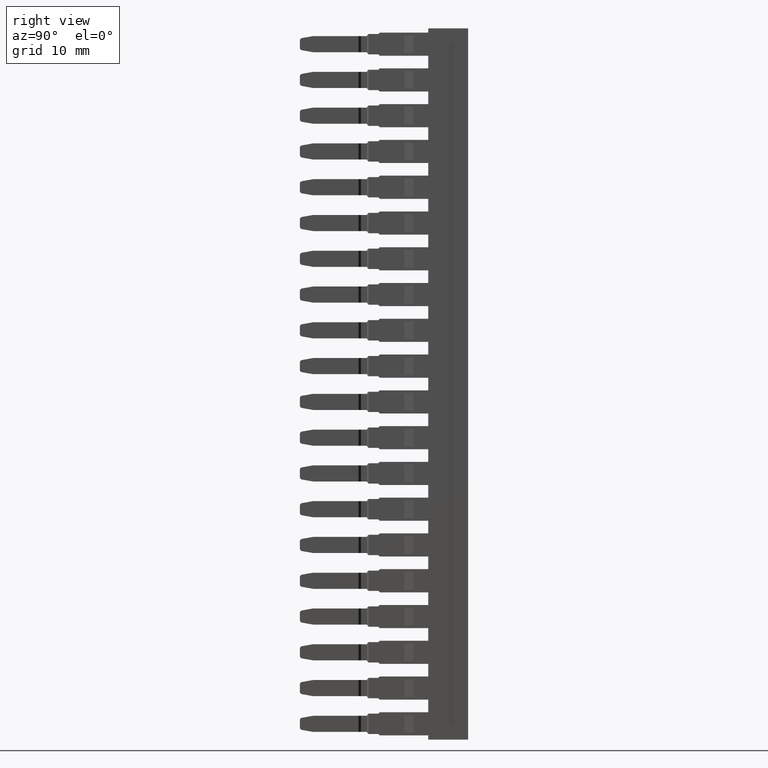
[diagram: clean part render]
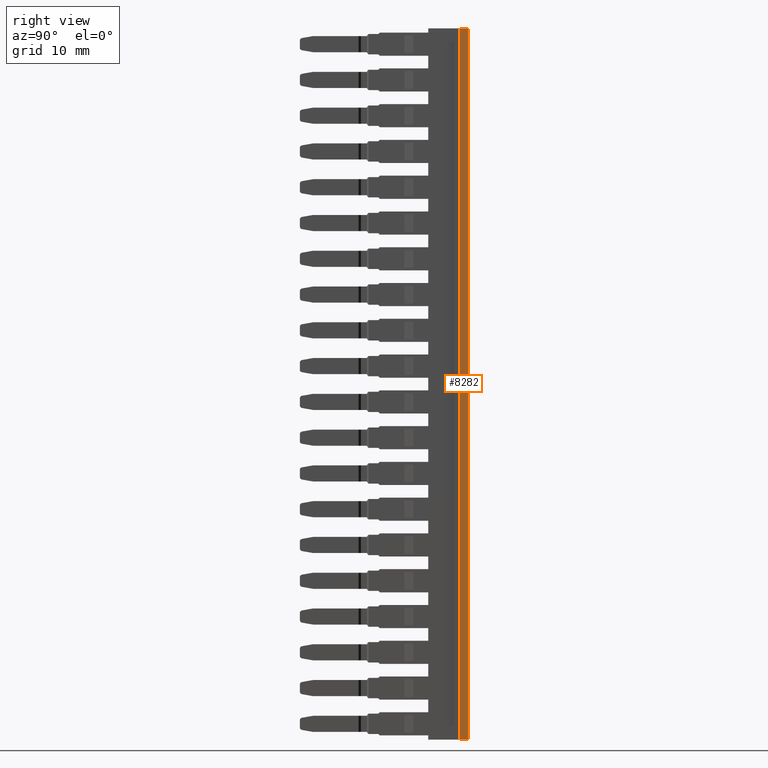
[diagram: same view with one face highlighted and labeled with its STEP entity id]
A machine part, right view. The second image highlights one B-rep face of the part: STEP entity #8282.
In plain terms, the highlighted planar face has unit normal (1, -0, 0).
Its self-contained STEP definition (entity closure, byte-faithful):
#91 = VECTOR ( 'NONE', #11210, 1000.000000000000000 ) ;
#134 = VECTOR ( 'NONE', #11181, 1000.000000000000000 ) ;
#205 = VECTOR ( 'NONE', #11320, 1000.000000000000000 ) ;
#206 = VECTOR ( 'NONE', #11325, 1000.000000000000000 ) ;
#882 = ORIENTED_EDGE ( 'NONE', *, *, #17254, .T. ) ;
#928 = ORIENTED_EDGE ( 'NONE', *, *, #17280, .T. ) ;
#941 = ORIENTED_EDGE ( 'NONE', *, *, #17251, .F. ) ;
#966 = ORIENTED_EDGE ( 'NONE', *, *, #17281, .T. ) ;
#2762 = AXIS2_PLACEMENT_3D ( 'NONE', #21115, #21087, #21109 ) ;
#3713 = CARTESIAN_POINT ( 'NONE',  ( 1459.989907072214500, 988.5426795374905900, 13.05000000017584000 ) ) ;
#3755 = CARTESIAN_POINT ( 'NONE',  ( 1459.989907072214500, 989.6926795374926100, 13.05000000017584000 ) ) ;
#3757 = CARTESIAN_POINT ( 'NONE',  ( 1459.989907072214500, 989.6926795374918100, 114.4499999999747900 ) ) ;
#3806 = CARTESIAN_POINT ( 'NONE',  ( 1459.989907072214500, 988.5426795374916100, 114.4499999999748100 ) ) ;
#8282 = ADVANCED_FACE ( 'NONE', ( #21086 ), #21117, .T. ) ;
#9142 = EDGE_LOOP ( 'NONE', ( #941, #928, #882, #966 ) ) ;
#9789 = VERTEX_POINT ( 'NONE', #3757 ) ;
#9803 = VERTEX_POINT ( 'NONE', #3755 ) ;
#9827 = VERTEX_POINT ( 'NONE', #3713 ) ;
#9872 = VERTEX_POINT ( 'NONE', #3806 ) ;
#11181 = DIRECTION ( 'NONE',  ( 1.715124499442844000E-015, -1.097884403469707200E-029, -1.000000000000000000 ) ) ;
#11189 = LINE ( 'NONE', #11201, #91 ) ;
#11201 = CARTESIAN_POINT ( 'NONE',  ( 1459.989907072214500, 989.6926795374930600, -30.13084736897824800 ) ) ;
#11210 = DIRECTION ( 'NONE',  ( -2.580167520952895700E-028, 6.606529101504750500E-015, -1.000000000000000000 ) ) ;
#11224 = CARTESIAN_POINT ( 'NONE',  ( 1459.989907072214500, 988.5426795374893300, -30.13084736897824800 ) ) ;
#11250 = LINE ( 'NONE', #11224, #134 ) ;
#11320 = DIRECTION ( 'NONE',  ( -6.401193638283130500E-015, -1.000000000000000000, -0.0000000000000000000 ) ) ;
#11322 = LINE ( 'NONE', #11327, #205 ) ;
#11325 = DIRECTION ( 'NONE',  ( 6.401193638283130500E-015, 1.000000000000000000, 0.0000000000000000000 ) ) ;
#11327 = CARTESIAN_POINT ( 'NONE',  ( 1459.989907072214200, 989.6926795374930600, 114.4499999999747900 ) ) ;
#11338 = LINE ( 'NONE', #11344, #206 ) ;
#11344 = CARTESIAN_POINT ( 'NONE',  ( 1459.989907072214500, 989.6926795374930600, 13.05000000017584000 ) ) ;
#17251 = EDGE_CURVE ( 'NONE', #9789, #9803, #11189, .T. ) ;
#17254 = EDGE_CURVE ( 'NONE', #9872, #9827, #11250, .T. ) ;
#17280 = EDGE_CURVE ( 'NONE', #9789, #9872, #11322, .T. ) ;
#17281 = EDGE_CURVE ( 'NONE', #9827, #9803, #11338, .T. ) ;
#21086 = FACE_OUTER_BOUND ( 'NONE', #9142, .T. ) ;
#21087 = DIRECTION ( 'NONE',  ( 1.000000000000000000, -6.401193638283130500E-015, 1.715124499442844000E-015 ) ) ;
#21109 = DIRECTION ( 'NONE',  ( 6.401193638283130500E-015, 1.000000000000000000, 0.0000000000000000000 ) ) ;
#21115 = CARTESIAN_POINT ( 'NONE',  ( 1459.989907072214500, 989.6926795374930600, -30.13084736897824800 ) ) ;
#21117 = PLANE ( 'NONE',  #2762 ) ;